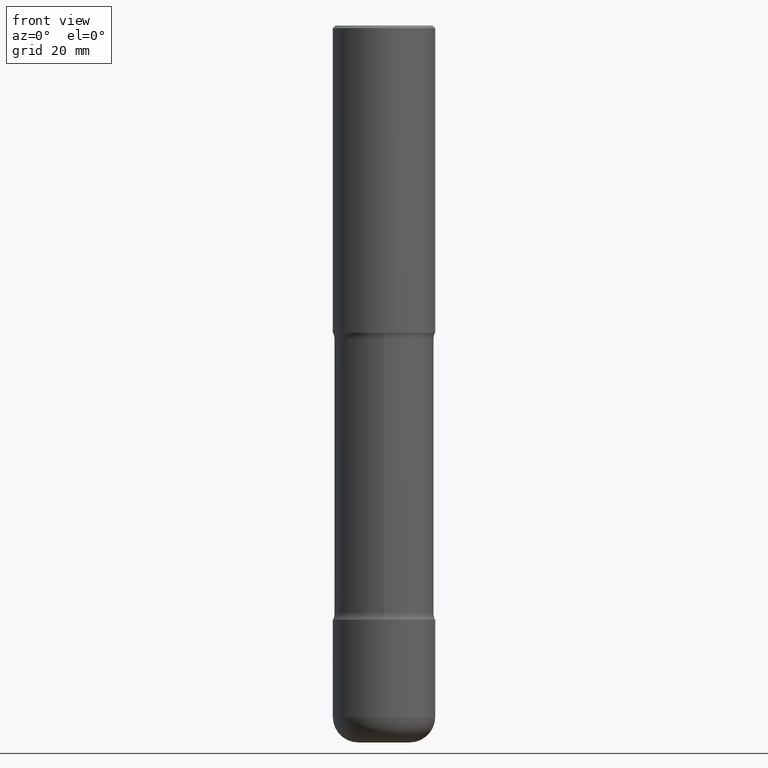
[diagram: clean part render]
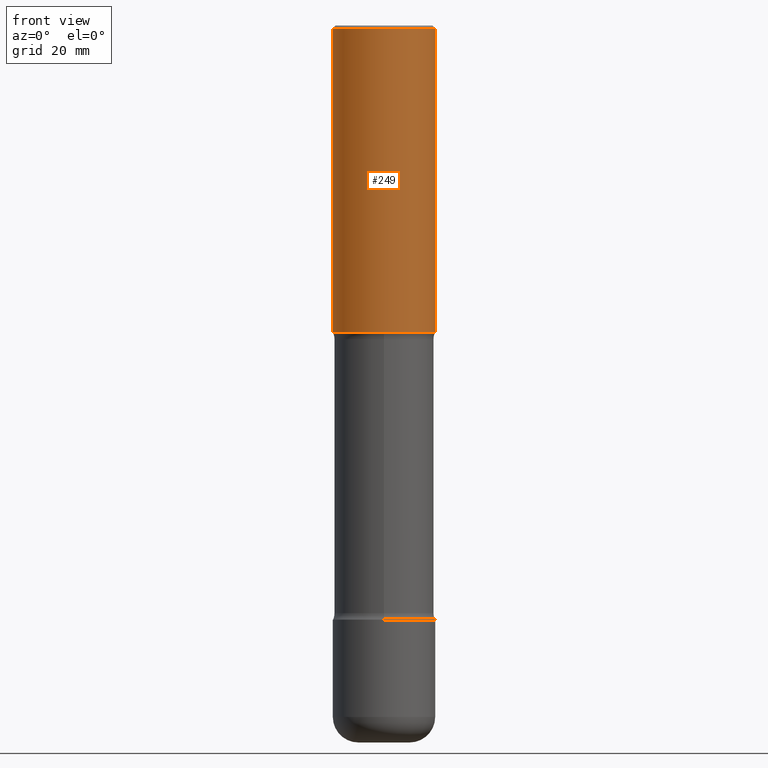
[diagram: same view with one face highlighted and labeled with its STEP entity id]
A machine part, front view. The second image highlights one B-rep face of the part: STEP entity #249.
In plain terms, the highlighted cylindrical surface (partial cylindrical patch) has radius 10 mm, axis along (-0, 0, 1).
Its self-contained STEP definition (entity closure, byte-faithful):
#30 = VERTEX_POINT ( 'NONE', #128 ) ;
#34 = VERTEX_POINT ( 'NONE', #123 ) ;
#40 = LINE ( 'NONE', #172, #403 ) ;
#43 = DIRECTION ( 'NONE',  ( 1.000000000000000000, -6.982962677686266711E-15, 0.000000000000000000 ) ) ;
#56 = ORIENTED_EDGE ( 'NONE', *, *, #238, .F. ) ;
#58 = AXIS2_PLACEMENT_3D ( 'NONE', #303, #297, #351 ) ;
#66 = DIRECTION ( 'NONE',  ( -2.445468806185136877E-29, 3.491481338843145188E-15, 1.000000000000000000 ) ) ;
#92 = CIRCLE ( 'NONE', #58, 0.3937000000000000499 ) ;
#109 = CARTESIAN_POINT ( 'NONE',  ( -0.3937000000000001054, 2.797406750687515181E-15, -1.936584745033357016E-29 ) ) ;
#123 = CARTESIAN_POINT ( 'NONE',  ( 0.3937000000000002164, -1.099676962482036442E-14, -2.362200000000000077 ) ) ;
#128 = CARTESIAN_POINT ( 'NONE',  ( -0.3937000000000000499, 2.679362779428219918E-15, -0.02000000000000008715 ) ) ;
#129 = CARTESIAN_POINT ( 'NONE',  ( 5.776686413970530874E-29, -8.247577218615279626E-15, -2.362200000000000077 ) ) ;
#139 = CARTESIAN_POINT ( 'NONE',  ( 0.3937000000000000499, -2.770807688499515734E-15, -0.02000000000000008715 ) ) ;
#154 = DIRECTION ( 'NONE',  ( -2.445468806185136597E-29, 3.491481338843145583E-15, 1.000000000000000000 ) ) ;
#158 = VERTEX_POINT ( 'NONE', #139 ) ;
#172 = CARTESIAN_POINT ( 'NONE',  ( 0.3937000000000001054, -2.749192406205084005E-15, 1.919750796630860452E-29 ) ) ;
#188 = LINE ( 'NONE', #109, #329 ) ;
#199 = VERTEX_POINT ( 'NONE', #220 ) ;
#206 = DIRECTION ( 'NONE',  ( -2.445468806185136597E-29, 3.491481338843145583E-15, 1.000000000000000000 ) ) ;
#220 = CARTESIAN_POINT ( 'NONE',  ( -0.3937000000000002720, -1.361296672008554112E-15, -2.362200000000000077 ) ) ;
#228 = CIRCLE ( 'NONE', #560, 0.3937000000000002164 ) ;
#238 = EDGE_CURVE ( 'NONE', #199, #30, #188, .T. ) ;
#249 = ADVANCED_FACE ( 'NONE', ( #411 ), #555, .T. ) ;
#258 = DIRECTION ( 'NONE',  ( -2.445468806185136877E-29, 3.491481338843145188E-15, 1.000000000000000000 ) ) ;
#297 = DIRECTION ( 'NONE',  ( -2.445468806185136597E-29, 3.491481338843145583E-15, 1.000000000000000000 ) ) ;
#303 = CARTESIAN_POINT ( 'NONE',  ( 4.890937612370294178E-31, -6.982962677686321191E-17, -0.02000000000000008715 ) ) ;
#313 = CARTESIAN_POINT ( 'NONE',  ( 0.000000000000000000, 0.000000000000000000, 0.000000000000000000 ) ) ;
#322 = ORIENTED_EDGE ( 'NONE', *, *, #439, .T. ) ;
#325 = DIRECTION ( 'NONE',  ( 1.000000000000000000, -6.982962677686266711E-15, 4.876176775795935793E-29 ) ) ;
#329 = VECTOR ( 'NONE', #66, 39.37007874015748143 ) ;
#335 = EDGE_CURVE ( 'NONE', #30, #158, #92, .T. ) ;
#351 = DIRECTION ( 'NONE',  ( 1.000000000000000000, -6.982962677686265922E-15, 0.000000000000000000 ) ) ;
#361 = EDGE_CURVE ( 'NONE', #199, #34, #228, .T. ) ;
#394 = ORIENTED_EDGE ( 'NONE', *, *, #335, .F. ) ;
#403 = VECTOR ( 'NONE', #258, 39.37007874015748143 ) ;
#411 = FACE_OUTER_BOUND ( 'NONE', #418, .T. ) ;
#418 = EDGE_LOOP ( 'NONE', ( #56, #464, #322, #394 ) ) ;
#439 = EDGE_CURVE ( 'NONE', #34, #158, #40, .T. ) ;
#464 = ORIENTED_EDGE ( 'NONE', *, *, #361, .T. ) ;
#513 = AXIS2_PLACEMENT_3D ( 'NONE', #313, #154, #325 ) ;
#555 = CYLINDRICAL_SURFACE ( 'NONE', #513, 0.3937000000000001054 ) ;
#560 = AXIS2_PLACEMENT_3D ( 'NONE', #129, #206, #43 ) ;